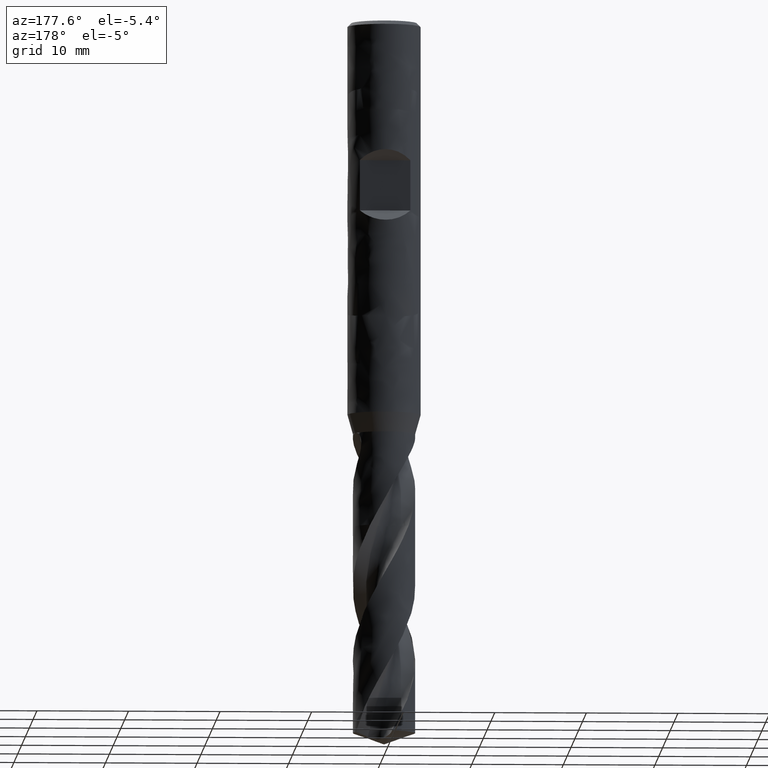
[diagram: clean part render]
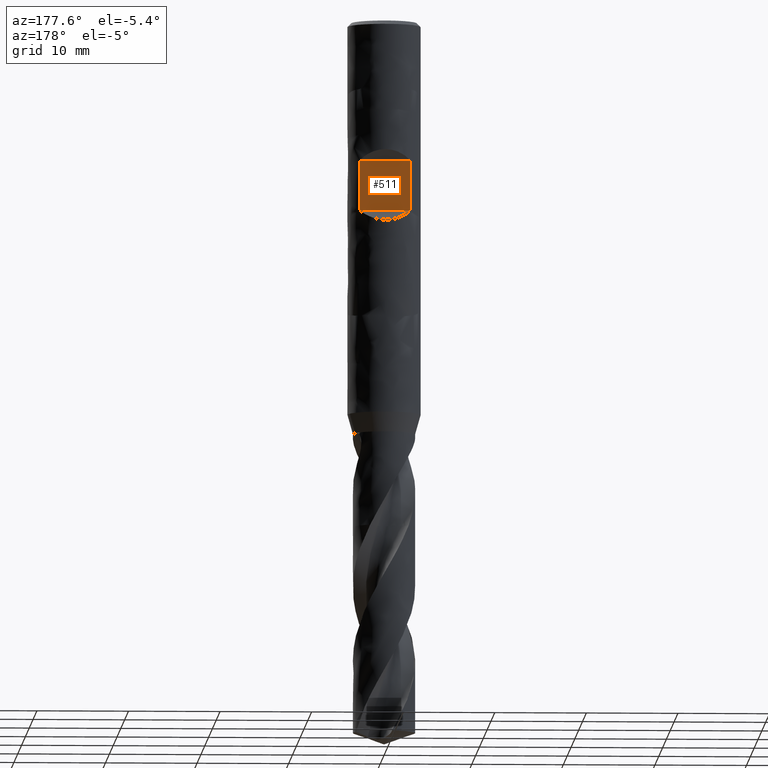
[diagram: same view with one face highlighted and labeled with its STEP entity id]
A machine part, auxiliary view. The second image highlights one B-rep face of the part: STEP entity #511.
In plain terms, the highlighted planar face has unit normal (0, 1, 0).
Its self-contained STEP definition (entity closure, byte-faithful):
#325 = VERTEX_POINT('', #326);
#326 = CARTESIAN_POINT('', (-2.75499546279118, 2.9, -15.25));
#327 = VERTEX_POINT('', #328);
#328 = CARTESIAN_POINT('', (2.75499546279118, 2.9, -15.25));
#401 = EDGE_CURVE('', #325, #402, #404, .T.);
#402 = VERTEX_POINT('', #403);
#403 = CARTESIAN_POINT('', (-2.75499546279118, 2.9, -20.75));
#404 = LINE('', #405, #406);
#405 = CARTESIAN_POINT('', (-2.75499546279118, 2.9, -15.25));
#406 = VECTOR('', #407, 5.5);
#407 = DIRECTION('', (0., -4.44089209850063E-16, -5.5));
#410 = VERTEX_POINT('', #411);
#411 = CARTESIAN_POINT('', (2.75499546279118, 2.9, -20.75));
#487 = EDGE_CURVE('', #327, #410, #488, .T.);
#488 = LINE('', #489, #490);
#489 = CARTESIAN_POINT('', (2.75499546279118, 2.9, -15.25));
#490 = VECTOR('', #491, 5.5);
#491 = DIRECTION('', (1.77635683940025E-15, 4.44089209850063E-16, -5.5));
#511 = ADVANCED_FACE('', (#512), #528, .T.);
#512 = FACE_OUTER_BOUND('', #513, .T.);
#513 = EDGE_LOOP('', (#514, #515, #521, #522));
#514 = ORIENTED_EDGE('', *, *, #487, .T.);
#515 = ORIENTED_EDGE('', *, *, #516, .T.);
#516 = EDGE_CURVE('', #410, #402, #517, .T.);
#517 = LINE('', #518, #519);
#518 = CARTESIAN_POINT('', (2.75499546279118, 2.9, -20.75));
#519 = VECTOR('', #520, 5.50999092558236);
#520 = DIRECTION('', (-5.50999092558236, 4.44089209850063E-16, 0.));
#521 = ORIENTED_EDGE('', *, *, #401, .F.);
#522 = ORIENTED_EDGE('', *, *, #523, .F.);
#523 = EDGE_CURVE('', #327, #325, #524, .T.);
#524 = LINE('', #525, #526);
#525 = CARTESIAN_POINT('', (2.75499546279118, 2.9, -15.25));
#526 = VECTOR('', #527, 5.50999092558236);
#527 = DIRECTION('', (-5.50999092558236, 4.44089209850063E-16, 0.));
#528 = PLANE('', #529);
#529 = AXIS2_PLACEMENT_3D('', #530, #531, #532);
#530 = CARTESIAN_POINT('', (4., 2.9, -20.75));
#531 = DIRECTION('', (0., 1., 8.07434927000114E-17));
#532 = DIRECTION('', (-1., 0., 0.));